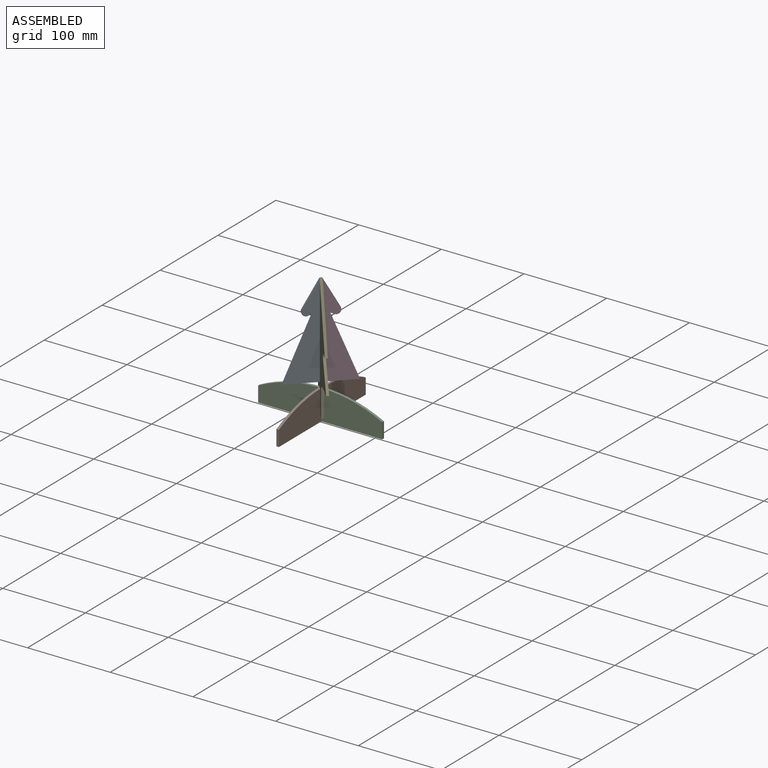
[diagram: assembled view]
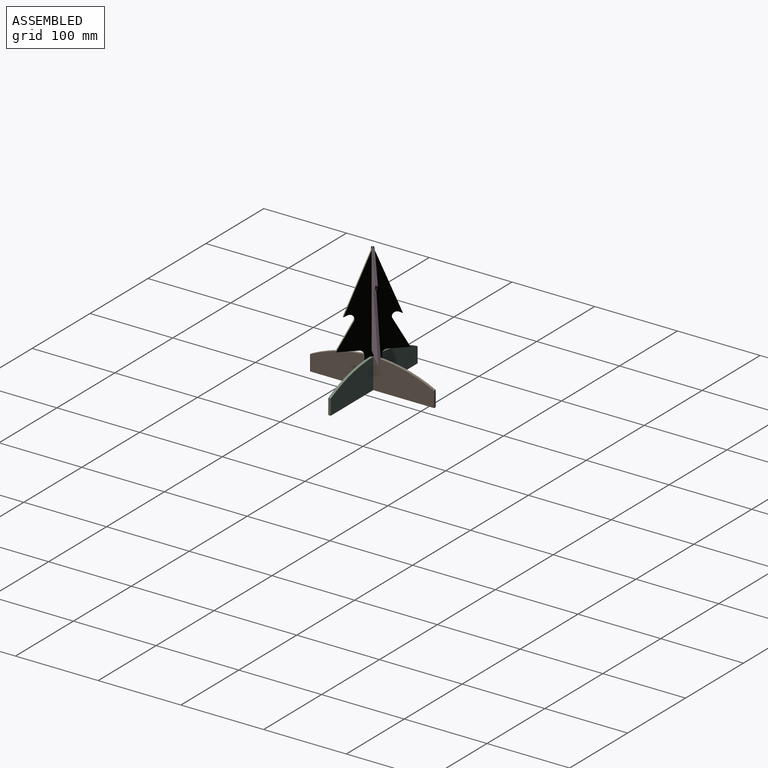
[diagram: assembled view, second angle]
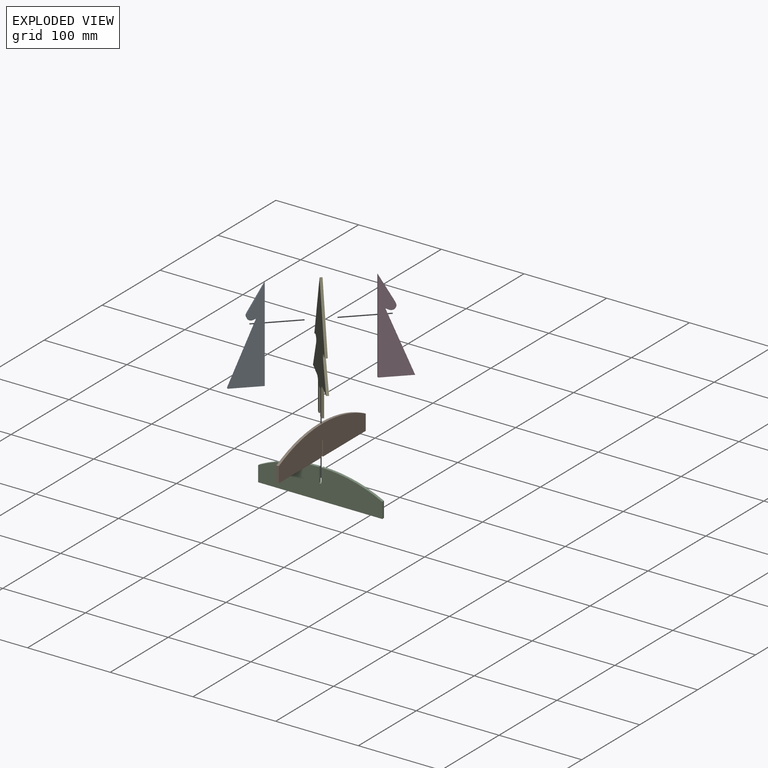
[diagram: exploded view]
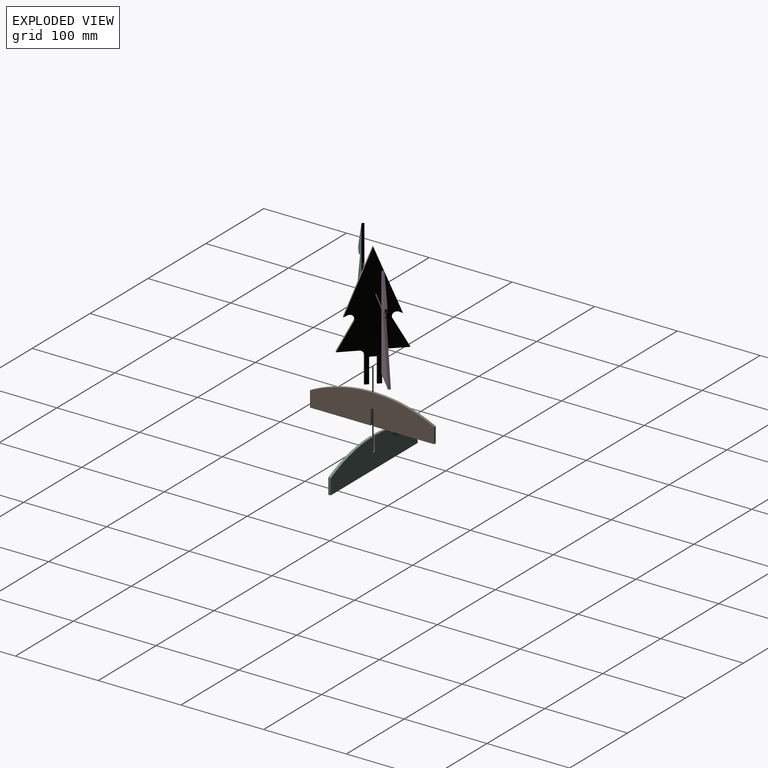
[diagram: exploded view, second angle]
ASSEMBLY  parts=5 mates=4
PART A: 8 faces, bbox 37.5x112.5x3 mm
  f0: plane 112.5x3mm, normal (1,0,0), area 337.5mm2, adj f1,f5,f6,f7
  f1: plane 37.5x3mm, normal (0,1,0), area 112.5mm2, adj f0,f2,f6,f7
  f2: plane 75x30mm, normal (-0.93,-0.37,0), area 242.3mm2, adj f1,f3,f6,f7
  f3: plane 4.09x3mm, normal (0.42,0.91,0), area 13.5mm2, adj f2,f4,f6,f7
  f4: cylinder r=5mm len=7.43mm, axis (0,0,-1), area 37.7mm2, adj f3,f5,f6,f7
  f5: plane 32.44x18.07mm, normal (-0.87,-0.49,0), area 111.4mm2, adj f0,f4,f6,f7
  f6: plane 112.5x37.5mm, normal (0,0,1), area 2089.7mm2, adj f0,f1,f2,f3,f4,f5
  f7: plane 112.5x37.5mm, normal (0,0,-1), area 2089.7mm2, adj f0,f1,f2,f3,f4,f5
PART B: 12 faces, bbox 36.5x150x3 mm
  f0: cylinder r=167.25mm len=73.27mm, axis (0,0,-1), area 228.1mm2, adj f1,f9,f10,f11
  f1: plane 18.75x3mm, normal (0,1,0), area 56.2mm2, adj f0,f2,f10,f11
  f2: plane 73.5x3mm, normal (-1,0,0), area 220.5mm2, adj f1,f3,f10,f11
  f3: plane 18.75x3mm, normal (0,-1,0), area 56.2mm2, adj f2,f4,f10,f11
  f4: plane 3x3mm, normal (-1,0,0), area 9mm2, adj f3,f5,f10,f11
  f5: plane 18.75x3mm, normal (0,1,0), area 56.2mm2, adj f4,f6,f10,f11
  f6: plane 73.5x3mm, normal (-1,0,0), area 220.5mm2, adj f5,f7,f10,f11
  f7: plane 18.75x3mm, normal (0,-1,0), area 56.2mm2, adj f6,f8,f10,f11
  f8: cylinder r=167.25mm len=73.27mm, axis (0,0,-1), area 228.1mm2, adj f7,f9,f10,f11
  f9: plane 3.46x3mm, normal (1,0,0), area 10.4mm2, adj f0,f8,f10,f11
  f10: plane 150x36.5mm, normal (0,0,1), area 4551.9mm2, adj f0,f1,f2,f3,f4,f5,f6,f7
  f11: plane 150x36.5mm, normal (0,0,-1), area 4551.9mm2, adj f0,f1,f2,f3,f4,f5,f6,f7
PART C: 10 faces, bbox 36.5x150x3 mm
  f0: plane 18.75x3mm, normal (0,-1,0), area 56.3mm2, adj f1,f7,f8,f9
  f1: plane 150x3mm, normal (1,0,0), area 450mm2, adj f0,f2,f8,f9
  f2: plane 18.75x3mm, normal (0,1,0), area 56.2mm2, adj f1,f3,f8,f9
  f3: cylinder r=167.25mm len=73.5mm, axis (0,0,-1), area 228.8mm2, adj f2,f4,f8,f9
  f4: plane 17.75x3mm, normal (0,-1,0), area 53.3mm2, adj f3,f5,f8,f9
  f5: plane 3x3mm, normal (-1,0,0), area 9mm2, adj f4,f6,f8,f9
  f6: plane 17.75x3mm, normal (0,1,0), area 53.3mm2, adj f5,f7,f8,f9
  f7: cylinder r=167.25mm len=73.5mm, axis (0,0,-1), area 228.8mm2, adj f0,f6,f8,f9
  f8: plane 150x36.5mm, normal (0,0,1), area 4554.9mm2, adj f0,f1,f2,f3,f4,f5,f6,f7
  f9: plane 150x36.5mm, normal (0,0,-1), area 4554.9mm2, adj f0,f1,f2,f3,f4,f5,f6,f7
PART D: 8 faces, bbox 37.5x112.5x3 mm
  f0: plane 37.5x3mm, normal (0,1,0), area 112.5mm2, adj f1,f5,f6,f7
  f1: plane 112.5x3mm, normal (-1,0,0), area 337.5mm2, adj f0,f2,f6,f7
  f2: plane 32.44x18.07mm, normal (0.87,-0.49,0), area 111.4mm2, adj f1,f3,f6,f7
  f3: cylinder r=5mm len=7.43mm, axis (0,0,-1), area 37.7mm2, adj f2,f4,f6,f7
  f4: plane 4.09x3mm, normal (-0.42,0.91,0), area 13.5mm2, adj f3,f5,f6,f7
  f5: plane 75x30mm, normal (0.93,-0.37,0), area 242.3mm2, adj f0,f4,f6,f7
  f6: plane 112.5x37.5mm, normal (0,0,1), area 2089.7mm2, adj f0,f1,f2,f3,f4,f5
  f7: plane 112.5x37.5mm, normal (0,0,-1), area 2089.7mm2, adj f0,f1,f2,f3,f4,f5
PART E: 21 faces, bbox 75x150x3 mm
  f0: cylinder r=5mm len=5mm, axis (0,0,-1), area 23.6mm2, adj f1,f18,f19,f20
  f1: plane 23.5x3mm, normal (0,-1,0), area 70.5mm2, adj f0,f2,f19,f20
  f2: plane 32.44x18.07mm, normal (0.87,0.49,0), area 111.4mm2, adj f1,f3,f19,f20
  f3: cylinder r=5mm len=7.43mm, axis (0,0,-1), area 37.7mm2, adj f2,f4,f19,f20
  f4: plane 4.09x3mm, normal (-0.42,-0.91,0), area 13.5mm2, adj f3,f5,f19,f20
  f5: plane 75x30mm, normal (0.93,0.37,0), area 242.3mm2, adj f4,f6,f19,f20
  f6: plane 75x30mm, normal (-0.93,0.37,0), area 242.3mm2, adj f5,f7,f19,f20
  f7: plane 4.09x3mm, normal (0.42,-0.91,0), area 13.5mm2, adj f6,f8,f19,f20
  f8: cylinder r=5mm len=7.43mm, axis (0,0,-1), area 37.7mm2, adj f7,f9,f19,f20
  f9: plane 32.44x18.07mm, normal (-0.87,0.49,0), area 111.4mm2, adj f8,f10,f19,f20
  f10: plane 23.4x3mm, normal (0,-1,0), area 70.2mm2, adj f9,f11,f19,f20
  f11: cylinder r=5.1mm len=5.1mm, axis (0,0,-1), area 24mm2, adj f10,f12,f19,f20
  f12: plane 32.4x3mm, normal (-1,0,0), area 97.2mm2, adj f11,f13,f19,f20
  f13: plane 5x3mm, normal (0,-1,0), area 15mm2, adj f12,f14,f19,f20
  f14: plane 30x3mm, normal (1,0,0), area 90mm2, adj f13,f15,f19,f20
  f15: plane 8x3mm, normal (0,-1,0), area 24mm2, adj f14,f16,f19,f20
  f16: plane 30x3mm, normal (-1,0,0), area 90mm2, adj f15,f17,f19,f20
  f17: plane 5x3mm, normal (0,-1,0), area 15mm2, adj f16,f18,f19,f20
  f18: plane 32.5x3mm, normal (1,0,0), area 97.5mm2, adj f0,f17,f19,f20
  f19: plane 150x75mm, normal (0,0,1), area 4703.9mm2, adj f0,f1,f2,f3,f4,f5,f6,f7
  f20: plane 150x75mm, normal (0,0,-1), area 4703.9mm2, adj f0,f1,f2,f3,f4,f5,f6,f7
PLACE A rot(axis=(-0.86,-0.36,0.36),98.4deg) t=(-108.48,-11.92,107.25)mm
PLACE B rot(axis=(0,-1,0),90deg) t=(-53.95,43.23,64.28)mm
PLACE C rot(axis=(0.58,0.58,-0.58),120deg) t=(-55.45,44.73,-10.72)mm fixed
PLACE D rot(axis=(-0.86,-0.36,0.36),98.4deg) t=(-53.33,43.24,107.25)mm
PLACE E rot(axis=(0.86,-0.36,-0.36),98.4deg) t=(-80.91,70.81,70.78)mm
MATE fastened D.f1 <-> E.f20  axis (-0.71,-0.71,0) through (-54.39,44.3,88.5)mm
MATE revolute E.f15 <-> B.f9  axis (0,0,-1) through (-55.45,43.23,25.78)mm
MATE fastened B.f4 <-> C.f5  axis (0,0,-1) through (-55.45,43.23,8.03)mm
MATE fastened A.f0 <-> E.f19  axis (0.71,0.71,0) through (-56.51,42.17,88.5)mm
